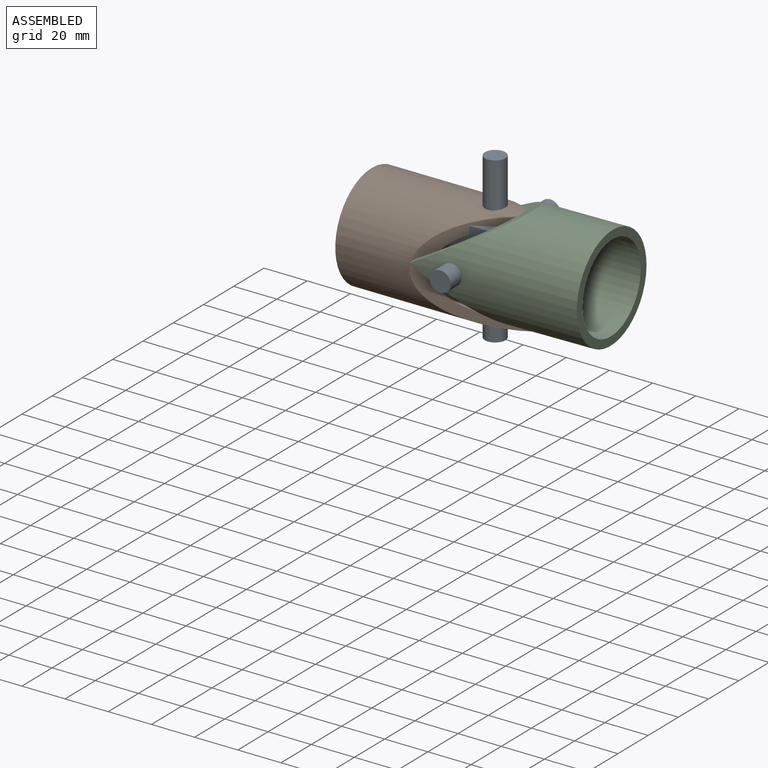
[diagram: assembled view]
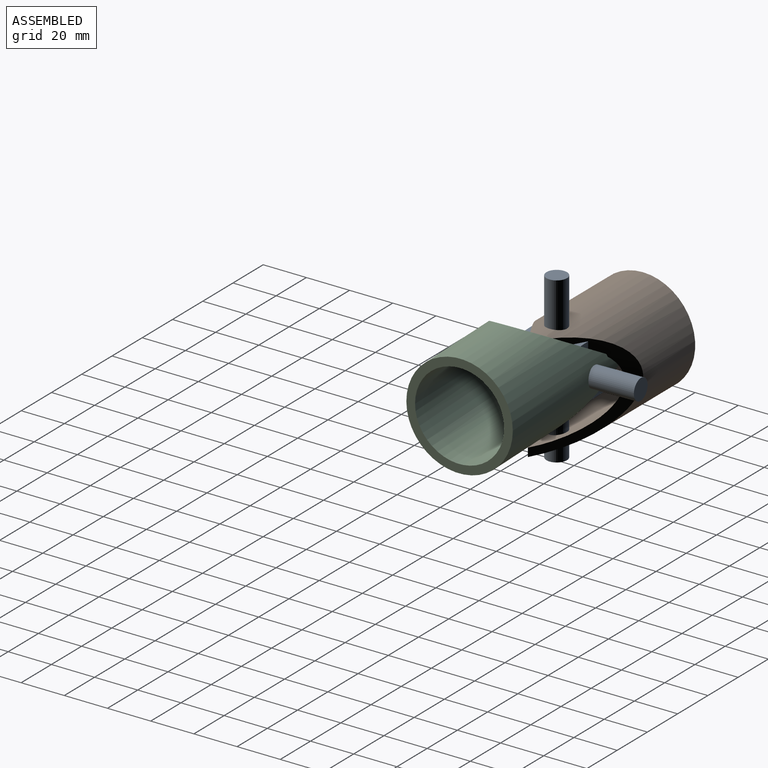
[diagram: assembled view, second angle]
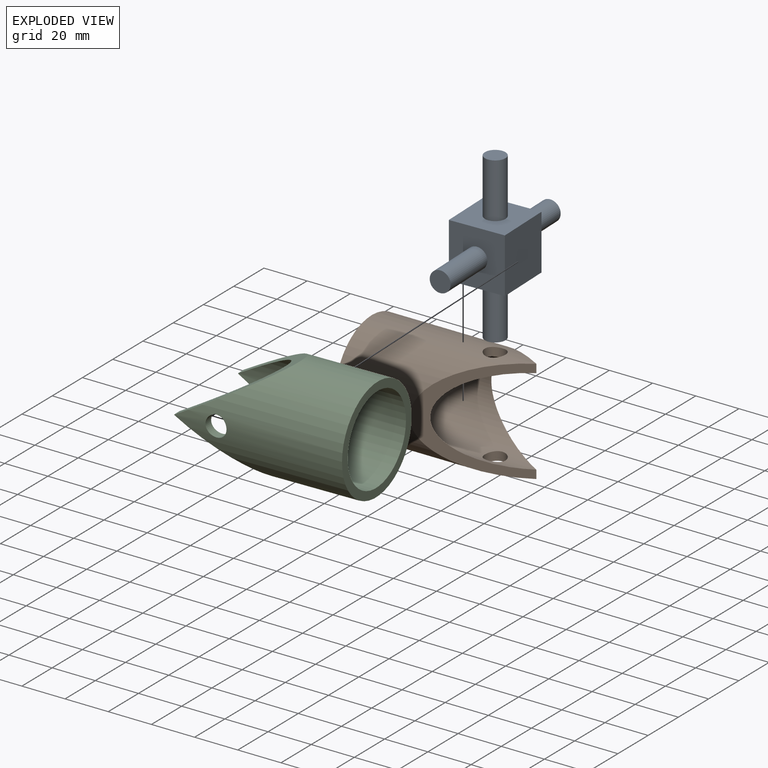
[diagram: exploded view]
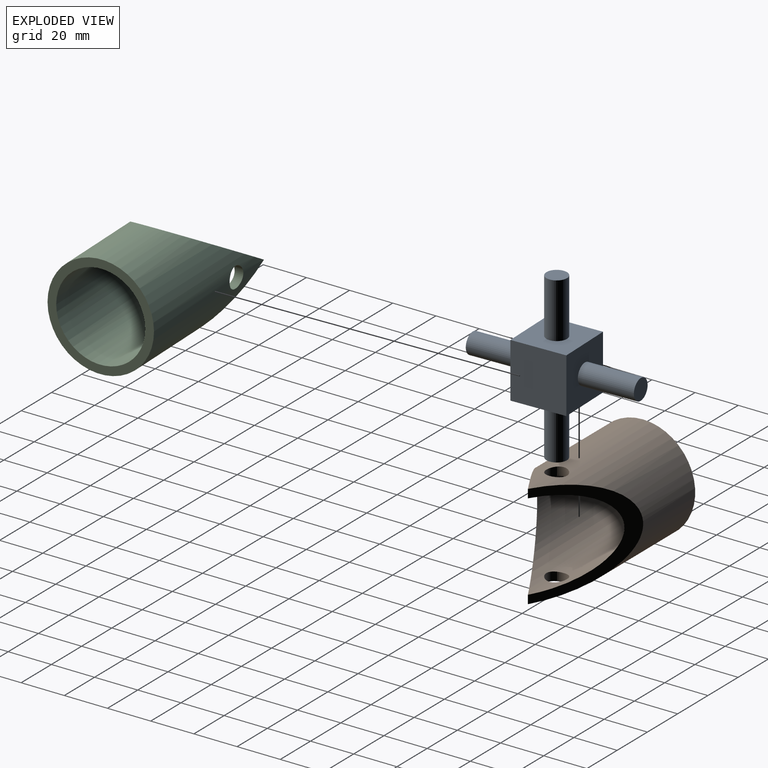
[diagram: exploded view, second angle]
ASSEMBLY  parts=3 mates=2
PART A: 14 faces, bbox 76.2x25.4x76.2 mm
  f0: plane 25.4x25.4mm, normal (0,0,1), area 573.9mm2, adj f1,f3,f4,f5,f6
  f1: plane 25.4x25.4mm, normal (-1,0,0), area 573.9mm2, adj f0,f2,f4,f5,f8
  f2: plane 25.4x25.4mm, normal (0,0,-1), area 573.9mm2, adj f1,f3,f4,f5,f10
  f3: plane 25.4x25.4mm, normal (1,0,0), area 573.9mm2, adj f0,f2,f4,f5,f12
  f4: plane 25.4x25.4mm, normal (0,-1,0), area 645.2mm2, adj f0,f1,f2,f3
  f5: plane 25.4x25.4mm, normal (0,1,0), area 645.2mm2, adj f0,f1,f2,f3
  f6: cylinder r=4.76mm len=25.4mm, axis (0,0,-1), area 760.1mm2, adj f0,f7
  f7: plane 9.53x9.53mm, normal (0,0,1), area 71.3mm2, adj f6
  f8: cylinder r=4.76mm len=25.4mm, axis (1,0,0), area 760.1mm2, adj f1,f9
  f9: plane 9.53x9.53mm, normal (-1,0,0), area 71.3mm2, adj f8
  f10: cylinder r=4.76mm len=25.4mm, axis (0,0,1), area 760.1mm2, adj f2,f11
  f11: plane 9.53x9.53mm, normal (0,0,-1), area 71.3mm2, adj f10
  f12: cylinder r=4.76mm len=25.4mm, axis (-1,0,0), area 760.1mm2, adj f3,f13
  f13: plane 9.53x9.53mm, normal (1,0,0), area 71.3mm2, adj f12
PART B: 7 faces, bbox 76.2x48.3x48.3 mm
  f0: cylinder r=20.19mm len=76.2mm, axis (-1,0,0), area 6699.7mm2, adj f2,f3,f4,f5,f6
  f1: cylinder r=24.13mm len=76.2mm, axis (-1,0,0), area 7376.2mm2, adj f2,f3,f4,f5,f6
  f2: plane 48.26x48.26mm, normal (-1,0,0), area 548.2mm2, adj f0,f1
  f3: plane 48.26x41.79mm, normal (0.5,-0.87,0), area 548.2mm2, adj f0,f1,f4
  f4: plane 48.26x41.79mm, normal (0.5,0.87,0), area 548.2mm2, adj f0,f1,f3
  f5: cylinder r=4.76mm len=9.53mm, axis (0,0,1), area 119.2mm2, adj f0,f1
  f6: cylinder r=4.76mm len=9.53mm, axis (0,0,1), area 119.2mm2, adj f0,f1
PART C: same geometry as B
PLACE A rot(axis=(-0.58,0.57,0.58),121deg) t=(57.15,0,6.64)mm
PLACE B at identity
PLACE C rot(axis=(0.01,-0.71,-0.71),178.5deg) t=(114.48,-4.83,6.38)mm
MATE cylindrical C.f5 <-> A.f6  axis (-0.03,1,0) through (56.67,15.23,6.64)mm
MATE cylindrical A.f8 <-> B.f5  axis (0,0,-1) through (57.15,0,32.04)mm
